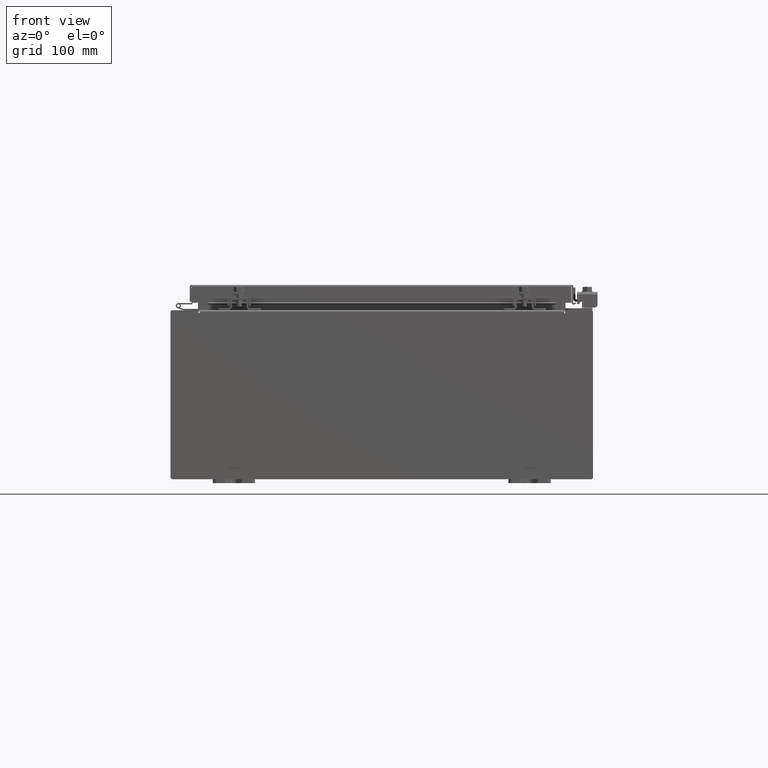
[diagram: clean part render]
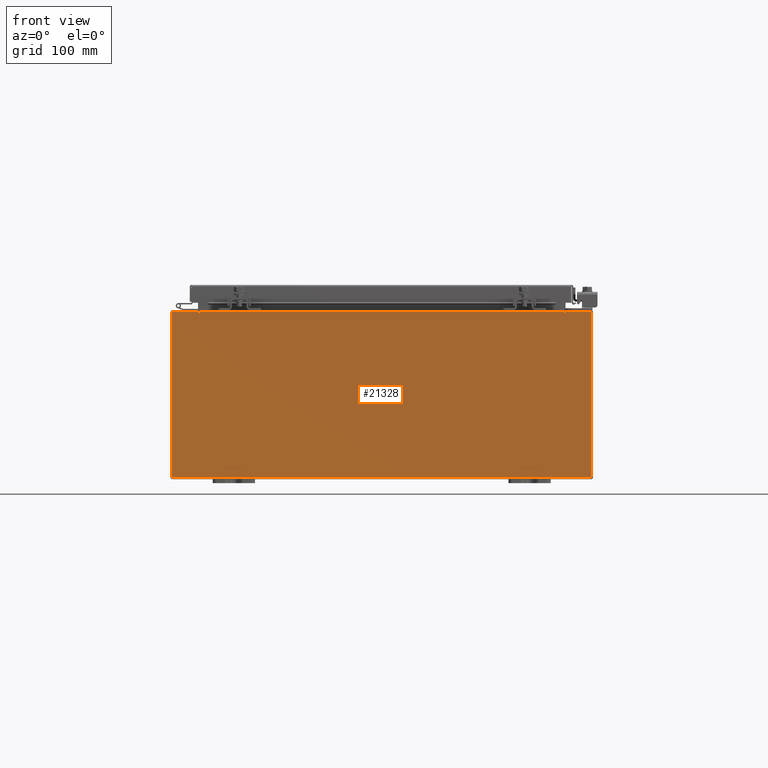
[diagram: same view with one face highlighted and labeled with its STEP entity id]
A machine part, front view. The second image highlights one B-rep face of the part: STEP entity #21328.
In plain terms, the highlighted planar face has unit normal (0, 1, -0).
Its self-contained STEP definition (entity closure, byte-faithful):
#502 = LINE ( 'NONE', #18952, #32707 ) ;
#539 = FACE_OUTER_BOUND ( 'NONE', #23527, .T. ) ;
#694 = ORIENTED_EDGE ( 'NONE', *, *, #13044, .T. ) ;
#831 = CARTESIAN_POINT ( 'NONE',  ( -9.925300000000000000, 0.0000000000000000000, -3.925300000000009800 ) ) ;
#876 = LINE ( 'NONE', #21992, #22719 ) ;
#1187 = DIRECTION ( 'NONE',  ( 3.225867722578232700E-016, 1.000000000000000000, -2.013110121372520500E-016 ) ) ;
#1300 = CARTESIAN_POINT ( 'NONE',  ( -9.925300000000000000, 0.0000000000000000000, 3.925299999999987600 ) ) ;
#1560 = EDGE_CURVE ( 'NONE', #32891, #21120, #20183, .T. ) ;
#2010 = LINE ( 'NONE', #1300, #14700 ) ;
#2659 = ORIENTED_EDGE ( 'NONE', *, *, #30306, .F. ) ;
#2680 = VERTEX_POINT ( 'NONE', #3997 ) ;
#3013 = LINE ( 'NONE', #24731, #29251 ) ;
#3638 = CARTESIAN_POINT ( 'NONE',  ( 8.674550000000000000, 0.0000000000000000000, 3.874950000000012600 ) ) ;
#3974 = CARTESIAN_POINT ( 'NONE',  ( -8.655874999999996400, 0.0000000000000000000, 3.874949999999993000 ) ) ;
#3997 = CARTESIAN_POINT ( 'NONE',  ( 9.925300000000000000, 0.0000000000000000000, 3.925300000000012000 ) ) ;
#4029 = VERTEX_POINT ( 'NONE', #24729 ) ;
#4336 = DIRECTION ( 'NONE',  ( 9.992007221626408900E-016, -2.013110121372521300E-016, 1.000000000000000000 ) ) ;
#5032 = ORIENTED_EDGE ( 'NONE', *, *, #18911, .F. ) ;
#5169 = CARTESIAN_POINT ( 'NONE',  ( 8.674549999999740600, 0.0000000000000000000, -5.551115123125782700E-013 ) ) ;
#5231 = ORIENTED_EDGE ( 'NONE', *, *, #11073, .F. ) ;
#6385 = ORIENTED_EDGE ( 'NONE', *, *, #11195, .T. ) ;
#6517 = DIRECTION ( 'NONE',  ( 0.0000000000000000000, 2.013110121372521300E-016, -1.000000000000000000 ) ) ;
#6821 = EDGE_CURVE ( 'NONE', #9573, #17142, #876, .T. ) ;
#6865 = DIRECTION ( 'NONE',  ( -3.225867722578236700E-016, -1.000000000000000000, -2.013110121372518100E-016 ) ) ;
#7657 = VERTEX_POINT ( 'NONE', #26713 ) ;
#7913 = CARTESIAN_POINT ( 'NONE',  ( -8.637199999999996400, 0.0000000000000000000, 3.912299999999993000 ) ) ;
#9573 = VERTEX_POINT ( 'NONE', #21917 ) ;
#9625 = CARTESIAN_POINT ( 'NONE',  ( -8.637200000000003500, 0.0000000000000000000, -6.556435184794231700E-015 ) ) ;
#9915 = PLANE ( 'NONE',  #22766 ) ;
#10408 = CIRCLE ( 'NONE', #11508, 0.01867500000000003900 ) ;
#11073 = EDGE_CURVE ( 'NONE', #21120, #12978, #28089, .T. ) ;
#11130 = ORIENTED_EDGE ( 'NONE', *, *, #18073, .T. ) ;
#11195 = EDGE_CURVE ( 'NONE', #2680, #11747, #3013, .T. ) ;
#11475 = DIRECTION ( 'NONE',  ( 1.000000000000000000, 3.225867722578232700E-016, 9.992007221626408900E-016 ) ) ;
#11508 = AXIS2_PLACEMENT_3D ( 'NONE', #16378, #1187, #18940 ) ;
#11747 = VERTEX_POINT ( 'NONE', #31949 ) ;
#12143 = ORIENTED_EDGE ( 'NONE', *, *, #32154, .T. ) ;
#12978 = VERTEX_POINT ( 'NONE', #21195 ) ;
#13044 = EDGE_CURVE ( 'NONE', #4029, #2680, #502, .T. ) ;
#13391 = CARTESIAN_POINT ( 'NONE',  ( -9.925300000000000000, 0.0000000000000000000, 3.925299999999987600 ) ) ;
#13949 = ORIENTED_EDGE ( 'NONE', *, *, #6821, .F. ) ;
#14061 = VECTOR ( 'NONE', #27749, 39.37007874015748100 ) ;
#14612 = DIRECTION ( 'NONE',  ( -9.992007221626408900E-016, 2.013110121372521300E-016, -1.000000000000000000 ) ) ;
#14618 = DIRECTION ( 'NONE',  ( -9.992007221626408900E-016, 2.013110121372521300E-016, -1.000000000000000000 ) ) ;
#14700 = VECTOR ( 'NONE', #11475, 39.37007874015748100 ) ;
#15279 = DIRECTION ( 'NONE',  ( -6.610779242816271500E-014, 2.013110121372310200E-016, -1.000000000000000000 ) ) ;
#15441 = CARTESIAN_POINT ( 'NONE',  ( -9.925300000000000000, 0.0000000000000000000, 3.925299999999987600 ) ) ;
#15954 = DIRECTION ( 'NONE',  ( 9.992007221626408900E-016, -2.013110121372521300E-016, 1.000000000000000000 ) ) ;
#16031 = DIRECTION ( 'NONE',  ( -1.000000000000000000, -3.225867722578232700E-016, -9.992007221626408900E-016 ) ) ;
#16378 = CARTESIAN_POINT ( 'NONE',  ( 8.655875000000000000, 0.0000000000000000000, 3.874950000000006300 ) ) ;
#16695 = VECTOR ( 'NONE', #16031, 39.37007874015748100 ) ;
#16798 = CARTESIAN_POINT ( 'NONE',  ( -8.637199999999996400, 0.0000000000000000000, 3.874949999999993000 ) ) ;
#16858 = ORIENTED_EDGE ( 'NONE', *, *, #20745, .F. ) ;
#17142 = VERTEX_POINT ( 'NONE', #26143 ) ;
#17884 = AXIS2_PLACEMENT_3D ( 'NONE', #3974, #21743, #6517 ) ;
#18073 = EDGE_CURVE ( 'NONE', #32891, #17142, #31250, .T. ) ;
#18563 = CARTESIAN_POINT ( 'NONE',  ( -8.674549999999996400, 0.0000000000000000000, 3.925299999999993400 ) ) ;
#18911 = EDGE_CURVE ( 'NONE', #12978, #27576, #20834, .T. ) ;
#18940 = DIRECTION ( 'NONE',  ( 0.0000000000000000000, 2.013110121372521300E-016, -1.000000000000000000 ) ) ;
#18952 = CARTESIAN_POINT ( 'NONE',  ( -9.925300000000000000, 0.0000000000000000000, 3.925299999999987600 ) ) ;
#20176 = CARTESIAN_POINT ( 'NONE',  ( -8.637200000000000000, 0.0000000000000000000, 3.912299999999993000 ) ) ;
#20183 = LINE ( 'NONE', #9625, #26965 ) ;
#20745 = EDGE_CURVE ( 'NONE', #4029, #28268, #29532, .T. ) ;
#20834 = LINE ( 'NONE', #30191, #14061 ) ;
#21120 = VERTEX_POINT ( 'NONE', #16798 ) ;
#21195 = CARTESIAN_POINT ( 'NONE',  ( -8.674549999999996400, 0.0000000000000000000, 3.874949999999993000 ) ) ;
#21328 = ADVANCED_FACE ( 'NONE', ( #539 ), #9915, .F. ) ;
#21711 = EDGE_CURVE ( 'NONE', #7657, #22819, #30722, .T. ) ;
#21743 = DIRECTION ( 'NONE',  ( 3.225867722578232700E-016, 1.000000000000000000, -2.013110121372520500E-016 ) ) ;
#21917 = CARTESIAN_POINT ( 'NONE',  ( 8.637200000000000000, 0.0000000000000000000, 3.874950000000006300 ) ) ;
#21992 = CARTESIAN_POINT ( 'NONE',  ( 8.637199999999994700, 0.0000000000000000000, 9.834652777191348400E-015 ) ) ;
#22032 = ORIENTED_EDGE ( 'NONE', *, *, #23880, .T. ) ;
#22086 = CARTESIAN_POINT ( 'NONE',  ( 0.0000000000000000000, 0.0000000000000000000, 0.0000000000000000000 ) ) ;
#22719 = VECTOR ( 'NONE', #4336, 39.37007874015748100 ) ;
#22754 = VECTOR ( 'NONE', #15279, 39.37007874015748100 ) ;
#22766 = AXIS2_PLACEMENT_3D ( 'NONE', #22086, #6865, #24637 ) ;
#22819 = VERTEX_POINT ( 'NONE', #15441 ) ;
#23443 = LINE ( 'NONE', #831, #16695 ) ;
#23527 = EDGE_LOOP ( 'NONE', ( #5032, #5231, #30779, #11130, #13949, #2659, #16858, #694, #6385, #22032, #32704, #12143 ) ) ;
#23880 = EDGE_CURVE ( 'NONE', #11747, #7657, #23443, .T. ) ;
#23927 = VECTOR ( 'NONE', #15954, 39.37007874015748100 ) ;
#24637 = DIRECTION ( 'NONE',  ( -9.992007221626408900E-016, 2.013110121372521300E-016, -1.000000000000000000 ) ) ;
#24729 = CARTESIAN_POINT ( 'NONE',  ( 8.674550000000001800, 0.0000000000000000000, 3.925300000000012900 ) ) ;
#24731 = CARTESIAN_POINT ( 'NONE',  ( 9.925300000000000000, 0.0000000000000000000, 3.925300000000012000 ) ) ;
#26143 = CARTESIAN_POINT ( 'NONE',  ( 8.637200000000000000, 0.0000000000000000000, 3.912300000000006300 ) ) ;
#26713 = CARTESIAN_POINT ( 'NONE',  ( -9.925300000000000000, 0.0000000000000000000, -3.925300000000009800 ) ) ;
#26965 = VECTOR ( 'NONE', #14612, 39.37007874015748100 ) ;
#27576 = VERTEX_POINT ( 'NONE', #18563 ) ;
#27749 = DIRECTION ( 'NONE',  ( 9.992007221626408900E-016, -2.013110121372521300E-016, 1.000000000000000000 ) ) ;
#27876 = DIRECTION ( 'NONE',  ( 1.000000000000000000, 3.225867722578232700E-016, 9.992007221626408900E-016 ) ) ;
#28089 = CIRCLE ( 'NONE', #17884, 0.01867500000000003900 ) ;
#28268 = VERTEX_POINT ( 'NONE', #3638 ) ;
#29251 = VECTOR ( 'NONE', #14618, 39.37007874015748100 ) ;
#29532 = LINE ( 'NONE', #5169, #22754 ) ;
#30191 = CARTESIAN_POINT ( 'NONE',  ( -8.674550000000003500, 0.0000000000000000000, -6.556435184794231700E-015 ) ) ;
#30306 = EDGE_CURVE ( 'NONE', #28268, #9573, #10408, .T. ) ;
#30444 = VECTOR ( 'NONE', #27876, 39.37007874015748100 ) ;
#30722 = LINE ( 'NONE', #13391, #23927 ) ;
#30779 = ORIENTED_EDGE ( 'NONE', *, *, #1560, .F. ) ;
#31250 = LINE ( 'NONE', #20176, #30444 ) ;
#31636 = DIRECTION ( 'NONE',  ( 1.000000000000000000, 3.225867722578232700E-016, 9.992007221626408900E-016 ) ) ;
#31949 = CARTESIAN_POINT ( 'NONE',  ( 9.925300000000000000, 0.0000000000000000000, -3.925299999999986700 ) ) ;
#32154 = EDGE_CURVE ( 'NONE', #22819, #27576, #2010, .T. ) ;
#32704 = ORIENTED_EDGE ( 'NONE', *, *, #21711, .T. ) ;
#32707 = VECTOR ( 'NONE', #31636, 39.37007874015748100 ) ;
#32891 = VERTEX_POINT ( 'NONE', #7913 ) ;